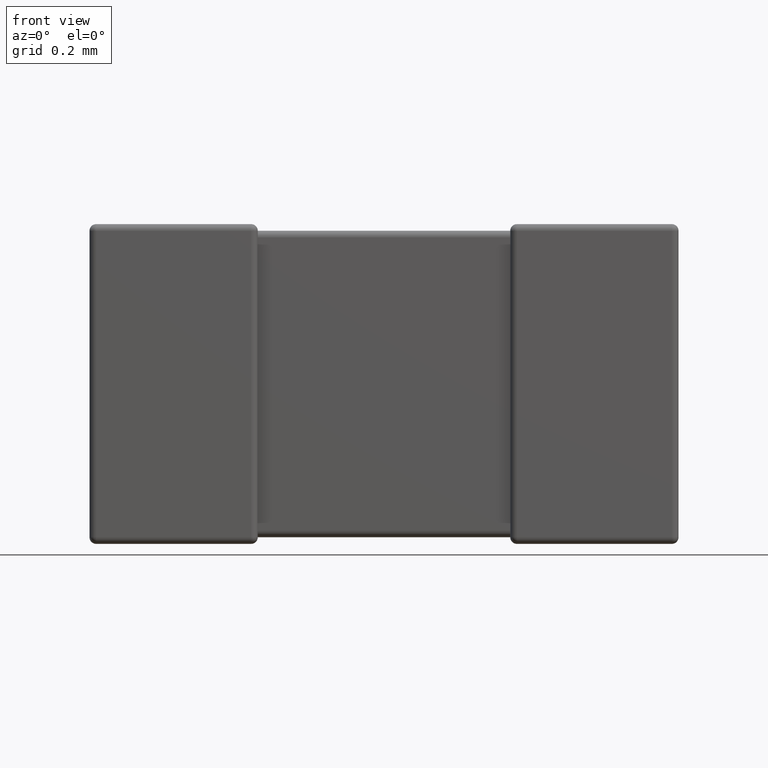
[diagram: clean part render]
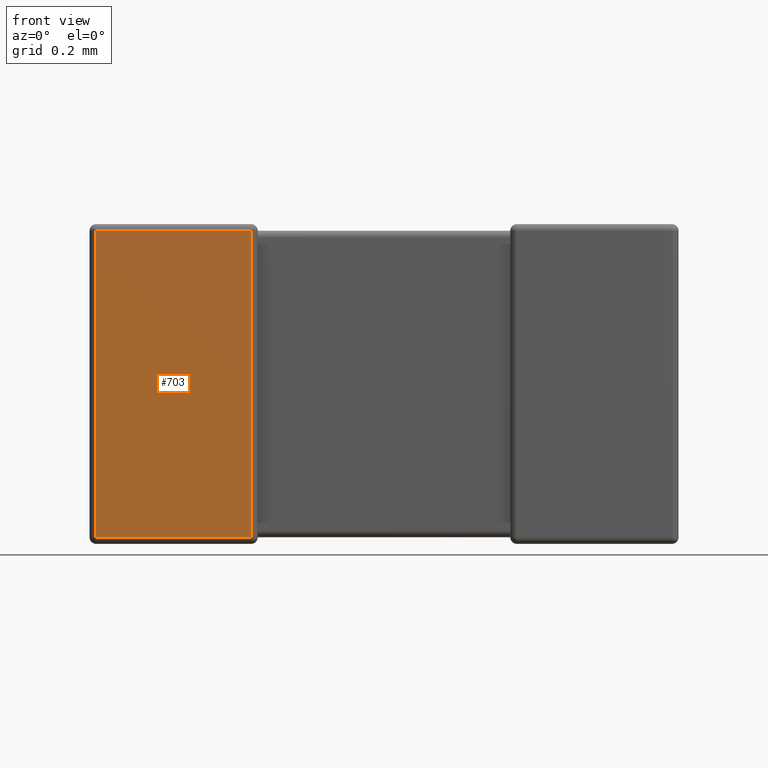
[diagram: same view with one face highlighted and labeled with its STEP entity id]
A machine part, front view. The second image highlights one B-rep face of the part: STEP entity #703.
In plain terms, the highlighted planar face has unit normal (-0, 1, 0).
Its self-contained STEP definition (entity closure, byte-faithful):
#135 = VECTOR ( 'NONE', #3907, 1000.000000000000000 ) ;
#183 = ORIENTED_EDGE ( 'NONE', *, *, #3647, .T. ) ;
#331 = DIRECTION ( 'NONE',  ( 1.000000000000000000, 0.000000000000000000, -0.000000000000000000 ) ) ;
#418 = DIRECTION ( 'NONE',  ( 0.000000000000000000, 0.000000000000000000, -1.000000000000000000 ) ) ;
#544 = CARTESIAN_POINT ( 'NONE',  ( 1.750000000000000000, 0.000000000000000000, 0.000000000000000000 ) ) ;
#643 = VERTEX_POINT ( 'NONE', #3727 ) ;
#657 = VECTOR ( 'NONE', #3303, 1000.000000000000000 ) ;
#697 = VECTOR ( 'NONE', #418, 1000.000000000000000 ) ;
#703 = ADVANCED_FACE ( 'NONE', ( #1660 ), #3772, .F. ) ;
#738 = CARTESIAN_POINT ( 'NONE',  ( 0.01975999999999995815, 0.000000000000000000, -0.01975999999999999979 ) ) ;
#946 = ORIENTED_EDGE ( 'NONE', *, *, #3300, .T. ) ;
#982 = DIRECTION ( 'NONE',  ( -0.000000000000000000, 1.000000000000000000, 0.000000000000000000 ) ) ;
#1017 = ORIENTED_EDGE ( 'NONE', *, *, #3351, .T. ) ;
#1054 = VERTEX_POINT ( 'NONE', #738 ) ;
#1211 = VERTEX_POINT ( 'NONE', #4134 ) ;
#1228 = VECTOR ( 'NONE', #331, 1000.000000000000000 ) ;
#1437 = CARTESIAN_POINT ( 'NONE',  ( 1.750000000000000000, 0.000000000000000000, -0.01975999999999999979 ) ) ;
#1557 = CARTESIAN_POINT ( 'NONE',  ( 0.01975999999999995815, 0.000000000000000000, -0.9500000000000000666 ) ) ;
#1660 = FACE_OUTER_BOUND ( 'NONE', #3081, .T. ) ;
#1861 = LINE ( 'NONE', #1437, #657 ) ;
#2084 = DIRECTION ( 'NONE',  ( 0.000000000000000000, -0.000000000000000000, 1.000000000000000000 ) ) ;
#2087 = LINE ( 'NONE', #2111, #135 ) ;
#2111 = CARTESIAN_POINT ( 'NONE',  ( 0.4802399999999952818, 0.000000000000000000, 0.000000000000000000 ) ) ;
#2826 = LINE ( 'NONE', #2899, #1228 ) ;
#2835 = CARTESIAN_POINT ( 'NONE',  ( 0.4802399999999952818, 0.000000000000000000, -0.01975999999999999979 ) ) ;
#2899 = CARTESIAN_POINT ( 'NONE',  ( 1.750000000000000000, 0.000000000000000000, -0.9302400000000001778 ) ) ;
#2988 = LINE ( 'NONE', #1557, #697 ) ;
#3078 = VERTEX_POINT ( 'NONE', #2835 ) ;
#3081 = EDGE_LOOP ( 'NONE', ( #183, #946, #1017, #3689 ) ) ;
#3300 = EDGE_CURVE ( 'NONE', #643, #3078, #2087, .T. ) ;
#3303 = DIRECTION ( 'NONE',  ( -1.000000000000000000, 0.000000000000000000, 0.000000000000000000 ) ) ;
#3351 = EDGE_CURVE ( 'NONE', #3078, #1054, #1861, .T. ) ;
#3400 = AXIS2_PLACEMENT_3D ( 'NONE', #544, #982, #2084 ) ;
#3647 = EDGE_CURVE ( 'NONE', #1211, #643, #2826, .T. ) ;
#3689 = ORIENTED_EDGE ( 'NONE', *, *, #4240, .T. ) ;
#3727 = CARTESIAN_POINT ( 'NONE',  ( 0.4802399999999952818, 0.000000000000000000, -0.9302400000000001778 ) ) ;
#3772 = PLANE ( 'NONE',  #3400 ) ;
#3907 = DIRECTION ( 'NONE',  ( 0.000000000000000000, 0.000000000000000000, 1.000000000000000000 ) ) ;
#4134 = CARTESIAN_POINT ( 'NONE',  ( 0.01975999999999995815, 0.000000000000000000, -0.9302400000000001778 ) ) ;
#4240 = EDGE_CURVE ( 'NONE', #1054, #1211, #2988, .T. ) ;